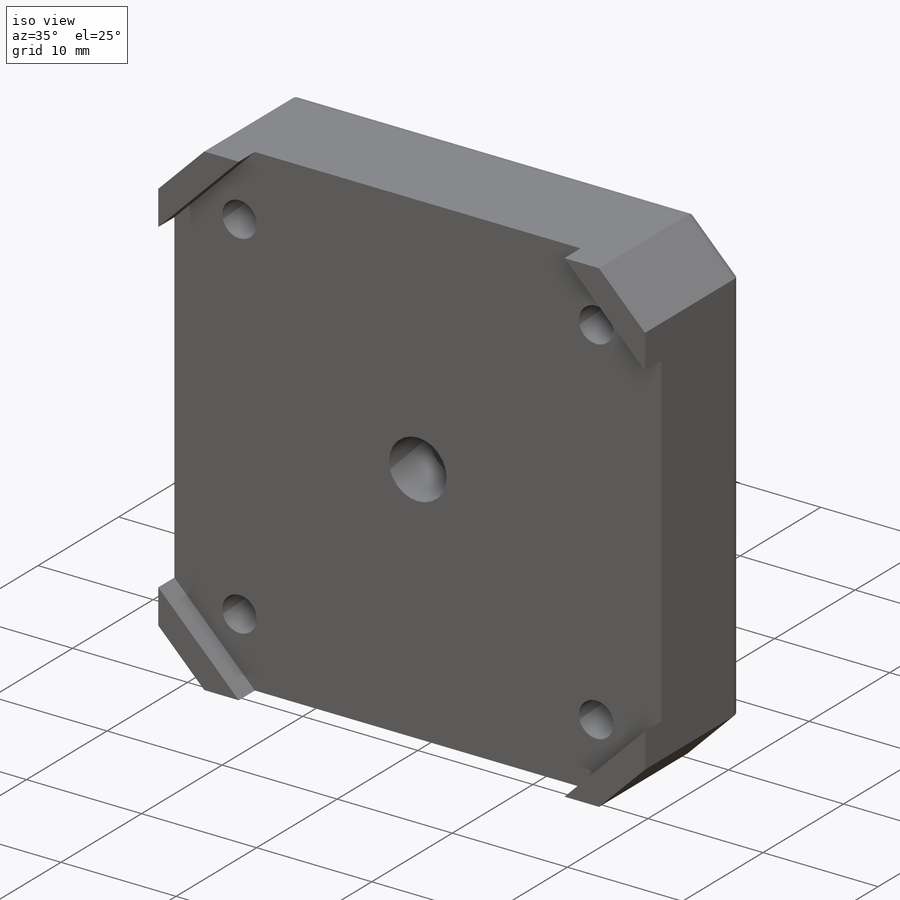
[diagram: iso view]
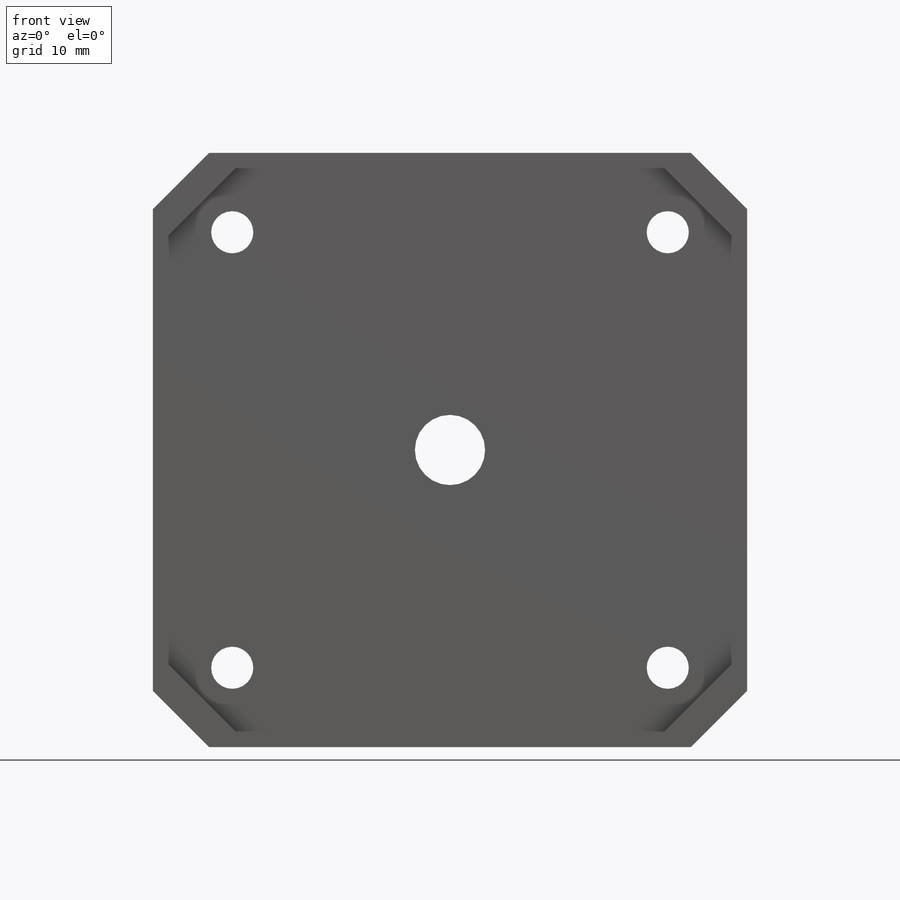
[diagram: front view]
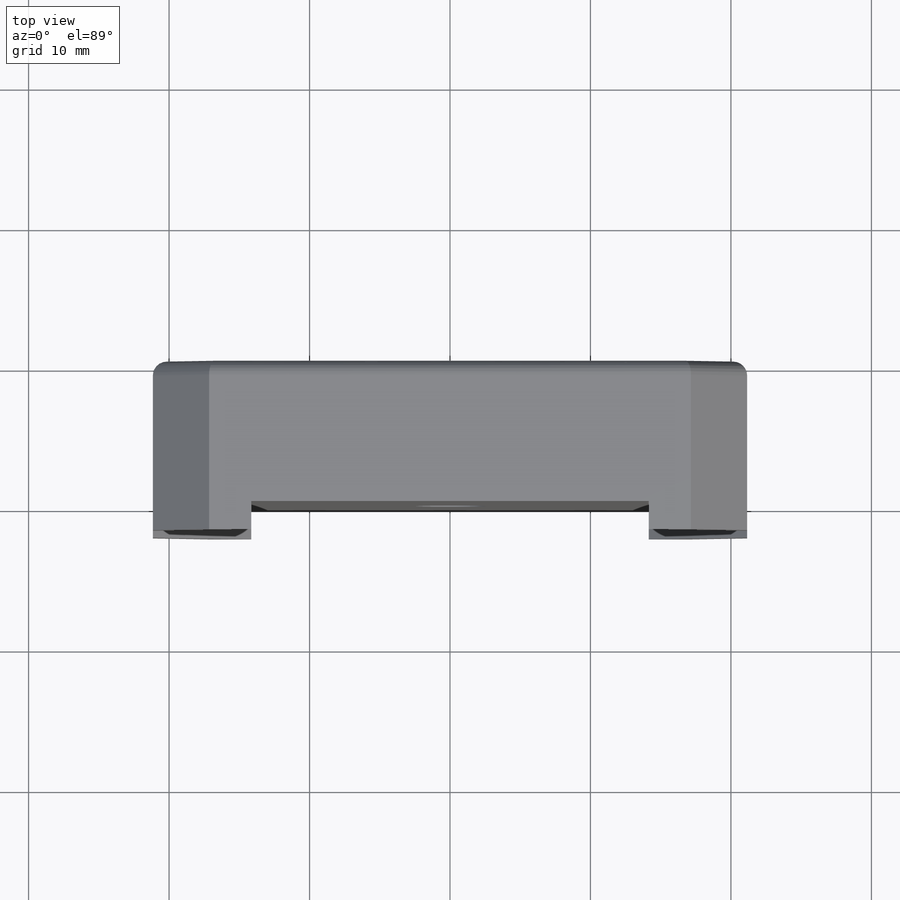
[diagram: top view]
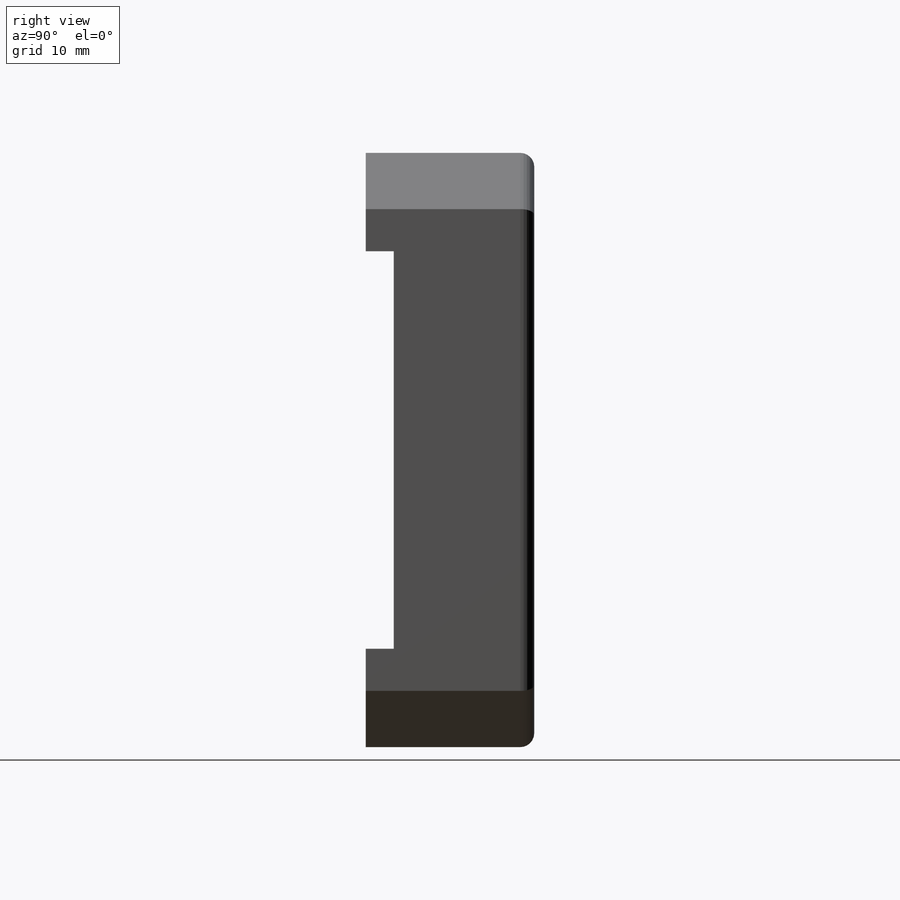
[diagram: right view]
SOLIDWORKS PART (.sldprt)
format: sldprt  version: not decoded by parser v0  size: 354,816 bytes
history: native  units: mm
features: sketch x6, cut_extrude x5, plane x3, fillet x2, material x1, extrude x1 + 2 further entries (+8 scaffold rows collapsed)
feature tree (28):
  scaffold x8  (default folders/planes/origin — collapsed)
  material  "Acero aleado"
  "SurfaceBodyFolder1"
  "SolidBodyFolder1"
  plane  "Plane1"
  plane  "Plane2"
  plane  "Plane3"
  sketch  "Sketch1"  dims[D1=42.3mm D2=42.3mm]
  extrude  "Extrude1"  Depth=12mm
  sketch  "Sketch2"  dims[D1=42.3mm D2=42.3mm]
  cut_extrude  "ICE1"  Depth=2mm
  sketch  "Sketch3"  dims[D1=3.0mm D2=15.5mm D3=15.5mm D5=31.0mm D6=15.5mm D4=4.0]
  cut_extrude  "ICE2"  Depth=22mm
  sketch  "Sketch4"  dims[D1=11.0mm]
  cut_extrude  "ICE3"  Depth=5mm
  fillet  "Fillet1"  Radius=1mm
  sketch  "Sketch5"  dims[D1=6.2mm D3=15.5mm D4=15.5mm D2=4.0]
  cut_extrude  "ICE4"  Depth=3mm
  fillet  "Fillet2"  Radius=0.5mm
  sketch  "Sketch6"  dims[D1=5.0mm]
  cut_extrude  "ICE5"  Depth=22mm
decode coverage: 14 of 14 modeling features carry decoded parameters; 2 rows unclassified (native names shown)
note: suppression state not decoded; provenance and decode notes live in map.json
